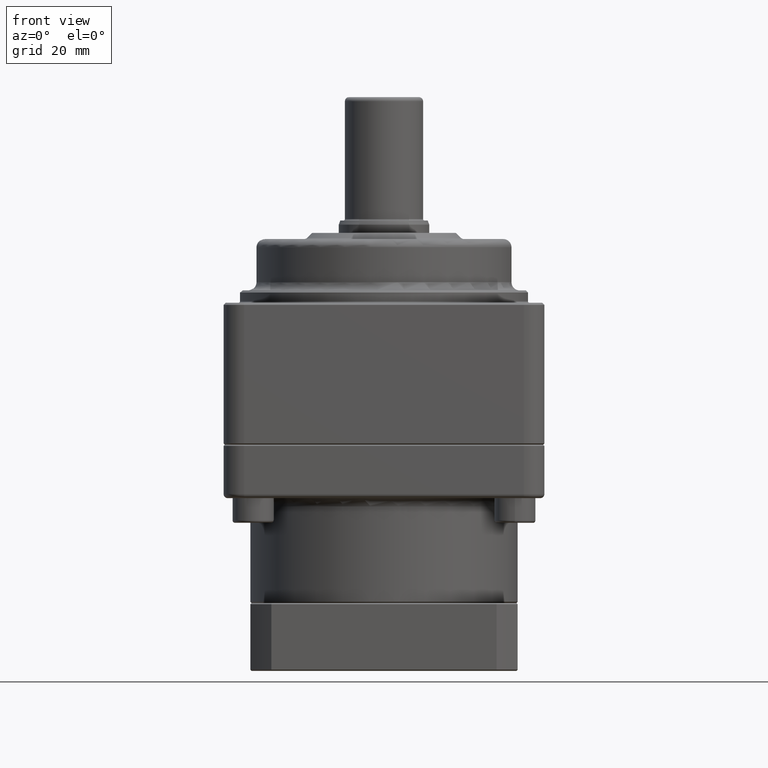
[diagram: clean part render]
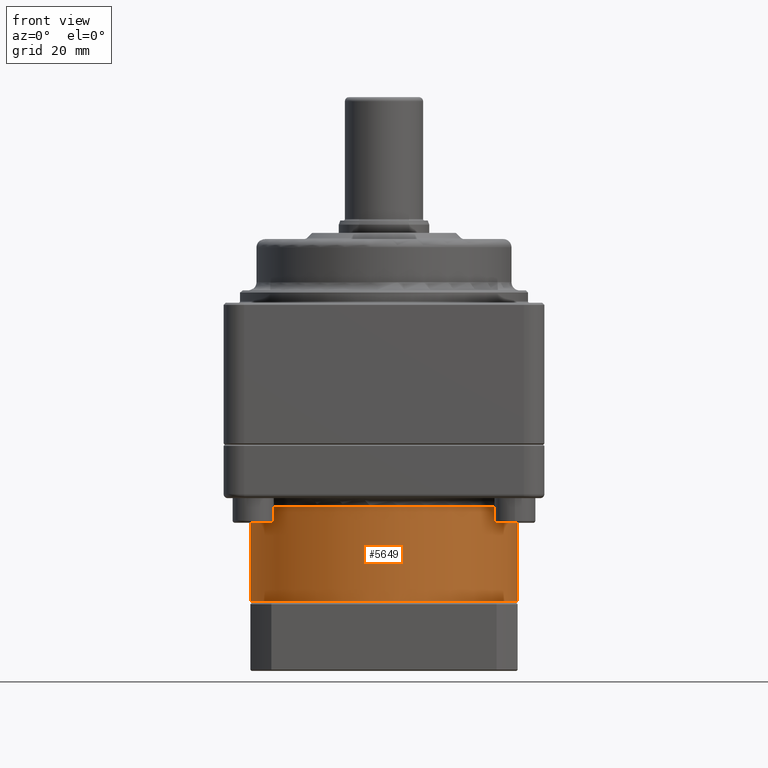
[diagram: same view with one face highlighted and labeled with its STEP entity id]
A machine part, front view. The second image highlights one B-rep face of the part: STEP entity #5649.
In plain terms, the highlighted cylindrical surface (bore or boss wall) has radius 32.5 mm, axis along (0, -0, 1).
Its self-contained STEP definition (entity closure, byte-faithful):
#5618=CARTESIAN_POINT('',(-32.5,-3.980102E-015,-15.000000000000004));
#5619=VERTEX_POINT('',#5618);
#5620=CARTESIAN_POINT('',(0.0,1.263377E-031,-15.000000000000004));
#5621=DIRECTION('',(0.0,0.0,1.0));
#5622=DIRECTION('',(1.0,0.0,0.0));
#5623=AXIS2_PLACEMENT_3D('',#5620,#5621,#5622);
#5624=CIRCLE('',#5623,32.5);
#5625=EDGE_CURVE('',#5619,#5619,#5624,.T.);
#5630=CARTESIAN_POINT('',(0.0,3.242666E-031,-38.5));
#5631=DIRECTION('',(0.0,-8.422510E-033,1.0));
#5632=DIRECTION('',(1.0,0.0,0.0));
#5633=AXIS2_PLACEMENT_3D('',#5630,#5631,#5632);
#5634=CYLINDRICAL_SURFACE('',#5633,32.5);
#5635=CARTESIAN_POINT('',(-32.5,3.980102E-015,-38.200000000000003));
#5636=VERTEX_POINT('',#5635);
#5637=CARTESIAN_POINT('',(0.0,3.217399E-031,-38.200000000000003));
#5638=DIRECTION('',(0.0,0.0,-1.0));
#5639=DIRECTION('',(1.0,0.0,0.0));
#5640=AXIS2_PLACEMENT_3D('',#5637,#5638,#5639);
#5641=CIRCLE('',#5640,32.5);
#5642=EDGE_CURVE('',#5636,#5636,#5641,.T.);
#5643=ORIENTED_EDGE('',*,*,#5642,.F.);
#5644=EDGE_LOOP('',(#5643));
#5645=FACE_OUTER_BOUND('',#5644,.T.);
#5646=ORIENTED_EDGE('',*,*,#5625,.F.);
#5647=EDGE_LOOP('',(#5646));
#5648=FACE_BOUND('',#5647,.T.);
#5649=ADVANCED_FACE('',(#5645,#5648),#5634,.T.);